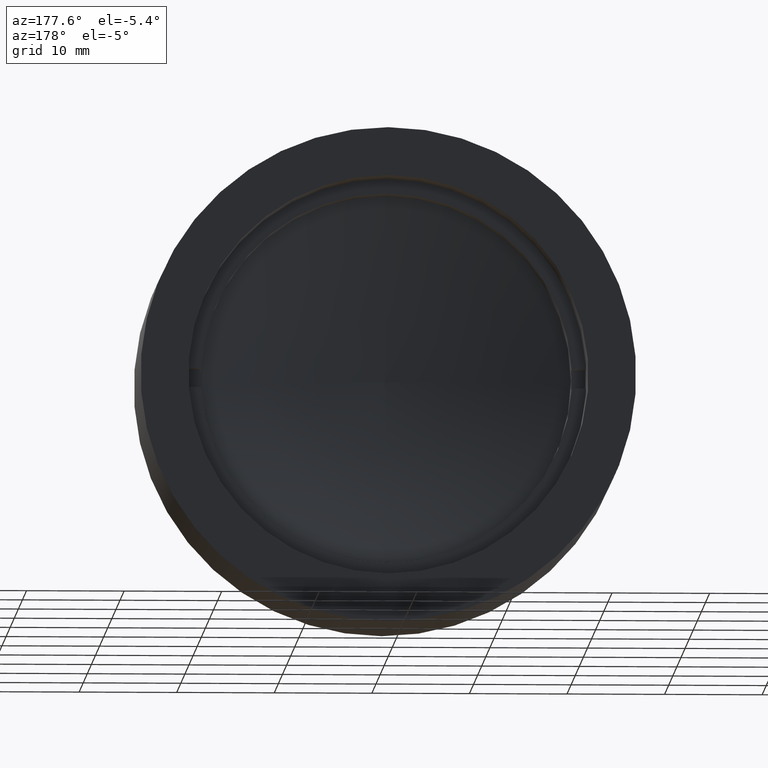
[diagram: clean part render]
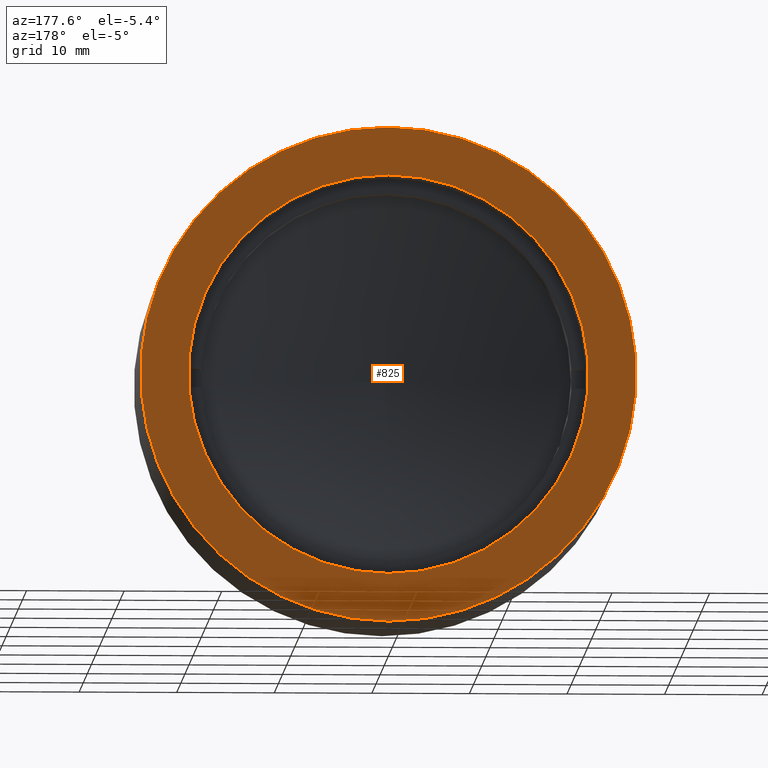
[diagram: same view with one face highlighted and labeled with its STEP entity id]
A machine part, auxiliary view. The second image highlights one B-rep face of the part: STEP entity #825.
In plain terms, the highlighted planar face has unit normal (-0, 1, 0).
Its self-contained STEP definition (entity closure, byte-faithful):
#40 = FACE_BOUND ( 'NONE', #841, .T. ) ;
#45 = ORIENTED_EDGE ( 'NONE', *, *, #591, .F. ) ;
#47 = DIRECTION ( 'NONE',  ( 0.000000000000000000, 0.000000000000000000, -1.000000000000000000 ) ) ;
#49 = CARTESIAN_POINT ( 'NONE',  ( 16.49478235880032884, -3.418806130578253111, 26.65036394347453097 ) ) ;
#53 = CARTESIAN_POINT ( 'NONE',  ( -8.905217641199669742, -3.418806130578253111, 26.65036394347453097 ) ) ;
#88 = DIRECTION ( 'NONE',  ( 0.000000000000000000, -1.000000000000000000, 0.000000000000000000 ) ) ;
#102 = CIRCLE ( 'NONE', #331, 20.50000000000000000 ) ;
#146 = CIRCLE ( 'NONE', #456, 25.39999999999999858 ) ;
#270 = CARTESIAN_POINT ( 'NONE',  ( -8.905217641199667966, -3.418806130578253111, 47.15036394347453808 ) ) ;
#298 = CIRCLE ( 'NONE', #1185, 20.50000000000000000 ) ;
#305 = VERTEX_POINT ( 'NONE', #1150 ) ;
#314 = EDGE_CURVE ( 'NONE', #887, #826, #102, .T. ) ;
#331 = AXIS2_PLACEMENT_3D ( 'NONE', #53, #945, #47 ) ;
#348 = DIRECTION ( 'NONE',  ( 0.000000000000000000, -1.000000000000000000, 0.000000000000000000 ) ) ;
#366 = VERTEX_POINT ( 'NONE', #1156 ) ;
#433 = PLANE ( 'NONE',  #1123 ) ;
#456 = AXIS2_PLACEMENT_3D ( 'NONE', #460, #348, #1175 ) ;
#460 = CARTESIAN_POINT ( 'NONE',  ( -8.905217641199669742, -3.418806130578253111, 26.65036394347453097 ) ) ;
#478 = DIRECTION ( 'NONE',  ( 0.000000000000000000, 0.000000000000000000, -1.000000000000000000 ) ) ;
#494 = CARTESIAN_POINT ( 'NONE',  ( -8.905217641199669742, -3.418806130578253111, 26.65036394347453097 ) ) ;
#520 = ORIENTED_EDGE ( 'NONE', *, *, #314, .T. ) ;
#557 = AXIS2_PLACEMENT_3D ( 'NONE', #494, #88, #478 ) ;
#558 = DIRECTION ( 'NONE',  ( -0.000000000000000000, 1.000000000000000000, 0.000000000000000000 ) ) ;
#591 = EDGE_CURVE ( 'NONE', #366, #305, #617, .T. ) ;
#612 = ORIENTED_EDGE ( 'NONE', *, *, #973, .T. ) ;
#617 = CIRCLE ( 'NONE', #557, 25.39999999999999858 ) ;
#642 = ORIENTED_EDGE ( 'NONE', *, *, #909, .F. ) ;
#825 = ADVANCED_FACE ( 'NONE', ( #1145, #40 ), #433, .T. ) ;
#826 = VERTEX_POINT ( 'NONE', #270 ) ;
#841 = EDGE_LOOP ( 'NONE', ( #520, #612 ) ) ;
#887 = VERTEX_POINT ( 'NONE', #1063 ) ;
#909 = EDGE_CURVE ( 'NONE', #305, #366, #146, .T. ) ;
#945 = DIRECTION ( 'NONE',  ( 0.000000000000000000, -1.000000000000000000, 0.000000000000000000 ) ) ;
#973 = EDGE_CURVE ( 'NONE', #826, #887, #298, .T. ) ;
#985 = DIRECTION ( 'NONE',  ( 0.000000000000000000, -1.000000000000000000, 0.000000000000000000 ) ) ;
#1063 = CARTESIAN_POINT ( 'NONE',  ( -8.905217641199669742, -3.418806130578253111, 6.150363943474530082 ) ) ;
#1084 = CARTESIAN_POINT ( 'NONE',  ( -8.905217641199669742, -3.418806130578253111, 26.65036394347453097 ) ) ;
#1123 = AXIS2_PLACEMENT_3D ( 'NONE', #49, #558, #1151 ) ;
#1145 = FACE_OUTER_BOUND ( 'NONE', #1285, .T. ) ;
#1150 = CARTESIAN_POINT ( 'NONE',  ( -8.905217641199666190, -3.418806130578253111, 52.05036394347452955 ) ) ;
#1151 = DIRECTION ( 'NONE',  ( 1.000000000000000000, 0.000000000000000000, 0.000000000000000000 ) ) ;
#1156 = CARTESIAN_POINT ( 'NONE',  ( -8.905217641199669742, -3.418806130578253111, 1.250363943474531947 ) ) ;
#1175 = DIRECTION ( 'NONE',  ( 0.000000000000000000, 0.000000000000000000, -1.000000000000000000 ) ) ;
#1185 = AXIS2_PLACEMENT_3D ( 'NONE', #1084, #985, #1188 ) ;
#1188 = DIRECTION ( 'NONE',  ( 0.000000000000000000, 0.000000000000000000, -1.000000000000000000 ) ) ;
#1285 = EDGE_LOOP ( 'NONE', ( #45, #642 ) ) ;